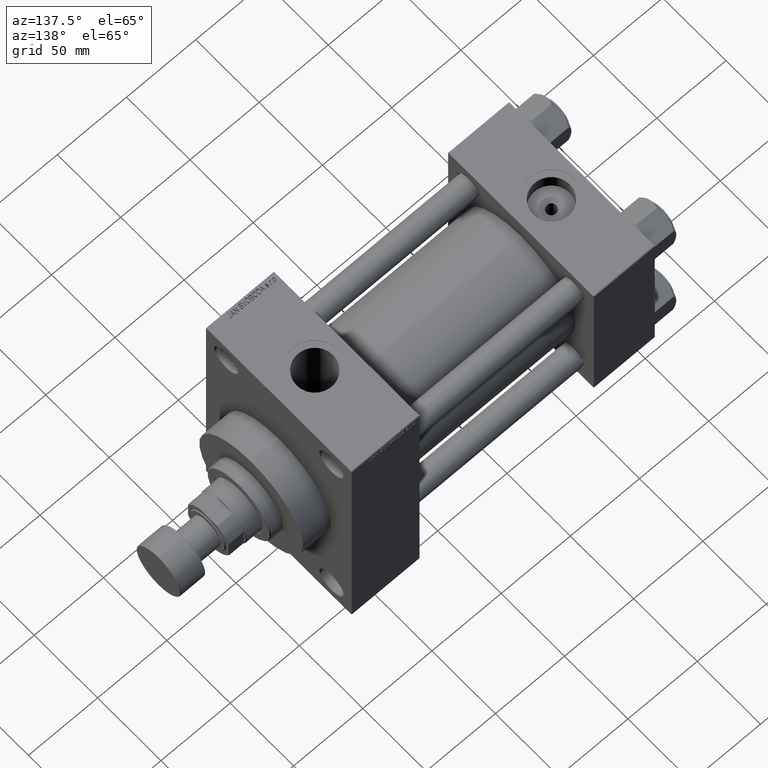
[diagram: clean part render]
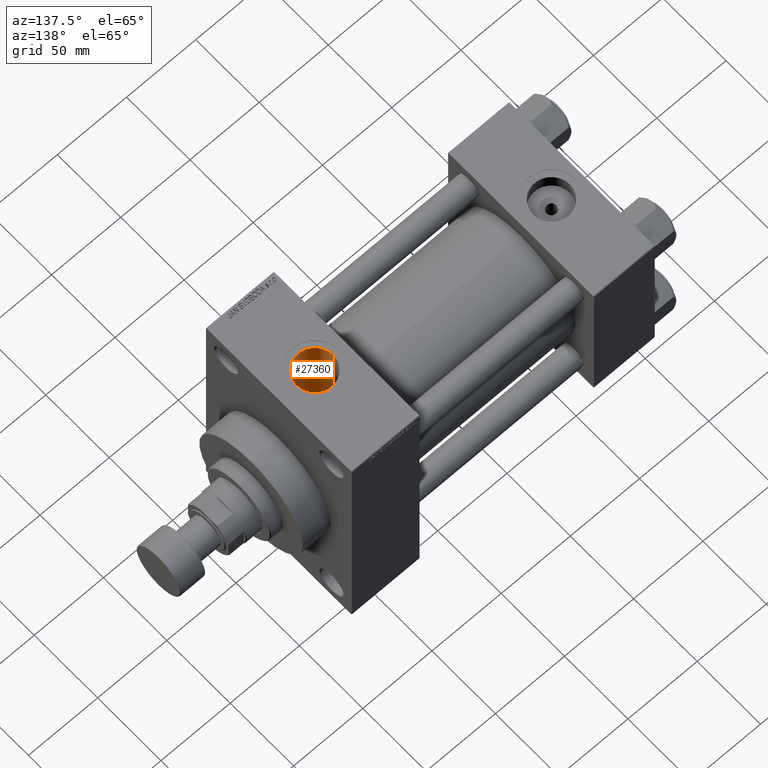
[diagram: same view with one face highlighted and labeled with its STEP entity id]
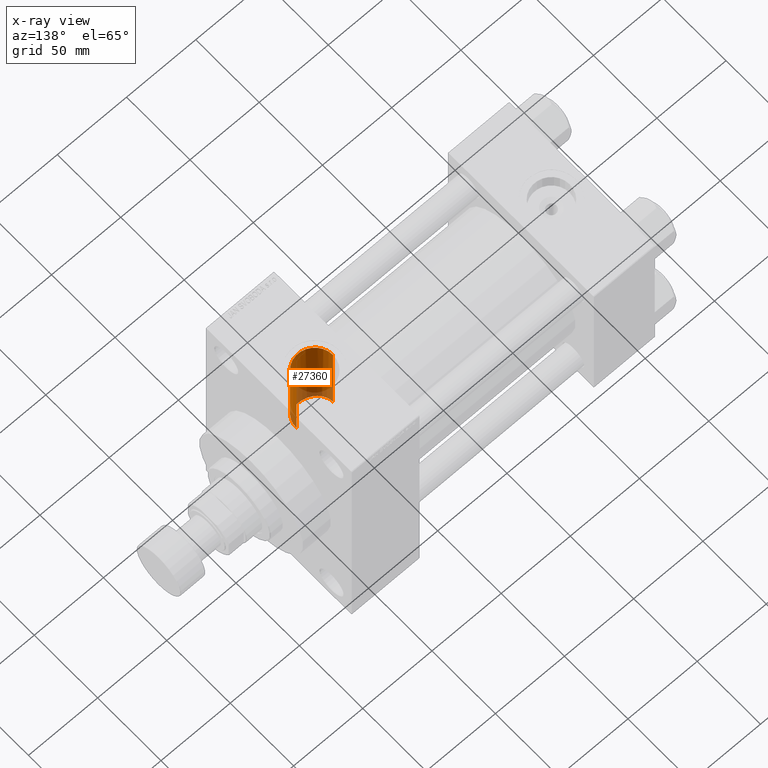
[diagram: x-ray of the same camera — body ghosted, the highlighted face saturated]
A machine part, auxiliary view. The second image highlights one B-rep face of the part: STEP entity #27360.
The next image is the same camera in x-ray: the body ghosted, the highlighted face saturated — about 17% of this face is hidden behind the body in this view.
In plain terms, the highlighted cylindrical surface (edge-blend (fillet) strip) has radius 13.22 mm, axis along (0, 0, -1).
Its self-contained STEP definition (entity closure, byte-faithful):
#1611 = CARTESIAN_POINT ( 'NONE',  ( 192.3058823230127530, -13.21107762266989205, 27.49031640659327635 ) ) ;
#1702 = CARTESIAN_POINT ( 'NONE',  ( 192.9999999999999432, 0.000000000000000000, 89.79999999999999716 ) ) ;
#2082 = CARTESIAN_POINT ( 'NONE',  ( 181.5247582497704002, -6.582345398711106910, 29.78430981770567954 ) ) ;
#2560 = CARTESIAN_POINT ( 'NONE',  ( 193.7935798839906170, -13.23338642126743103, 27.47958799132000607 ) ) ;
#4592 = CARTESIAN_POINT ( 'NONE',  ( 204.3340033522583212, -6.815280192024299133, 35.35054759480856035 ) ) ;
#4777 = LINE ( 'NONE', #16425, #20120 ) ;
#5734 = CARTESIAN_POINT ( 'NONE',  ( 190.8194127222318457, -13.04835861710614786, 27.56801161413728707 ) ) ;
#5937 = VERTEX_POINT ( 'NONE', #41547 ) ;
#6068 = DIRECTION ( 'NONE',  ( -0.000000000000000000, -0.000000000000000000, -1.000000000000000000 ) ) ;
#6215 = CARTESIAN_POINT ( 'NONE',  ( 186.2234386244903703, -11.39284893347530669, 28.29622104590159637 ) ) ;
#6621 = CARTESIAN_POINT ( 'NONE',  ( 192.9999999999999432, 0.000000000000000000, 112.7999999999999829 ) ) ;
#6821 = B_SPLINE_CURVE_WITH_KNOTS ( 'NONE', 3,
 ( #30377, #11886, #15548, #33526, #26722, #25980, #41568, #41322, #37416, #4592, #33275, #22098, #37667, #7994, #48152, #34261, #40829, #44739, #36927, #26959, #22836, #14807, #29631, #34016, #8235, #44490 ),
 .UNSPECIFIED., .F., .F.,
 ( 4, 2, 2, 2, 2, 2, 2, 2, 2, 2, 2, 2, 4 ),
 ( 0.01810032772820882249, 0.02036086973656277624, 0.02149114074073976005, 0.02262141174491674386, 0.02488195375327071496, 0.02601222475744771959, 0.02714249576162472422, 0.02940303776997867796, 0.03053330877415563055, 0.03166357977833257620, 0.03392412178668648137, 0.03505439279086343396, 0.03618466379504037961 ),
 .UNSPECIFIED. ) ;
#7664 = CIRCLE ( 'NONE', #40299, 13.22000000000000952 ) ;
#7926 = EDGE_CURVE ( 'NONE', #11636, #40504, #4777, .T. ) ;
#7994 = CARTESIAN_POINT ( 'NONE',  ( 202.7829955645537723, -8.922873027715073846, 34.88174282732675380 ) ) ;
#8235 = CARTESIAN_POINT ( 'NONE',  ( 196.1130436000878774, -12.85390086390295217, 33.62713791769439098 ) ) ;
#8349 = LINE ( 'NONE', #34365, #38058 ) ;
#10099 = CARTESIAN_POINT ( 'NONE',  ( 179.8075453442666287, -0.9859064391995535637, 30.48803002647009563 ) ) ;
#11137 = CARTESIAN_POINT ( 'NONE',  ( 179.7799999999999443, 0.000000000000000000, 89.79999999999999716 ) ) ;
#11389 = ORIENTED_EDGE ( 'NONE', *, *, #25288, .T. ) ;
#11636 = VERTEX_POINT ( 'NONE', #34922 ) ;
#11886 = CARTESIAN_POINT ( 'NONE',  ( 206.2200000000000273, -0.7632647160769622241, 36.00000000000001421 ) ) ;
#12137 = DIRECTION ( 'NONE',  ( 0.000000000000000000, 0.000000000000000000, -1.000000000000000000 ) ) ;
#12797 = CARTESIAN_POINT ( 'NONE',  ( 179.7799999999999727, -0.4934884814115262364, 30.49999999999999289 ) ) ;
#13029 = ORIENTED_EDGE ( 'NONE', *, *, #22970, .T. ) ;
#13035 = CARTESIAN_POINT ( 'NONE',  ( 181.2888049357340776, -6.152518877594246760, 29.87635194004259276 ) ) ;
#13274 = CARTESIAN_POINT ( 'NONE',  ( 189.3806226936400776, -12.72437874985378770, 27.71924882183591166 ) ) ;
#13511 = CARTESIAN_POINT ( 'NONE',  ( 187.9856869291994315, -12.24205054737453580, 27.93593895886879253 ) ) ;
#14807 = CARTESIAN_POINT ( 'NONE',  ( 197.5622627804116291, -12.41346128962091555, 33.79242230791057011 ) ) ;
#15548 = CARTESIAN_POINT ( 'NONE',  ( 206.1544019816762443, -1.515576091947736570, 35.97576316411754505 ) ) ;
#16425 = CARTESIAN_POINT ( 'NONE',  ( 195.7399999999999807, -12.93293470176047144, 112.7999999999999829 ) ) ;
#16839 = VERTEX_POINT ( 'NONE', #36299 ) ;
#17310 = B_SPLINE_CURVE_WITH_KNOTS ( 'NONE', 3,
 ( #28099, #34934, #2560, #1611, #35650, #5734, #20337, #13274, #24212, #13511, #42959, #6215, #35404, #20571, #35885, #31280, #43198, #2082, #13035, #43441, #46145, #21053, #39532, #17405, #46624, #10099, #12797, #27620 ),
 .UNSPECIFIED., .F., .F.,
 ( 4, 2, 2, 2, 2, 2, 2, 2, 2, 2, 2, 2, 2, 4 ),
 ( 0.01817501853417217983, 0.02113533814074456882, 0.02261549794403076505, 0.02409565774731695781, 0.02557581755060315404, 0.02705597735388935027, 0.03001629696046174273, 0.03297661656703413519, 0.03445677637032031060, 0.03593693617360647907, 0.03889725578017882990, 0.03963733568182191414, 0.04037741558346501225, 0.04185757538675118766 ),
 .UNSPECIFIED. ) ;
#17405 = CARTESIAN_POINT ( 'NONE',  ( 179.9249887712033456, -1.968324950537285289, 30.43741289426055019 ) ) ;
#17589 = AXIS2_PLACEMENT_3D ( 'NONE', #6621, #36544, #47032 ) ;
#18073 = CARTESIAN_POINT ( 'NONE',  ( 206.2199999999999704, 4.408731805096607676E-15, 36.00000000000000000 ) ) ;
#18557 = DIRECTION ( 'NONE',  ( 0.000000000000000000, 0.000000000000000000, -1.000000000000000000 ) ) ;
#19972 = ORIENTED_EDGE ( 'NONE', *, *, #33382, .F. ) ;
#20120 = VECTOR ( 'NONE', #33959, 1000.000000000000000 ) ;
#20142 = CARTESIAN_POINT ( 'NONE',  ( 206.2199999999999704, 1.618983068472802532E-15, 112.7999999999999829 ) ) ;
#20337 = CARTESIAN_POINT ( 'NONE',  ( 190.3349265898027340, -12.95789683450919405, 27.61085799903363025 ) ) ;
#20571 = CARTESIAN_POINT ( 'NONE',  ( 183.8972371638811865, -9.636377362439823457, 28.94508358760565869 ) ) ;
#21053 = CARTESIAN_POINT ( 'NONE',  ( 180.0571384771799615, -2.704130925345936021, 30.38086169036233031 ) ) ;
#22098 = CARTESIAN_POINT ( 'NONE',  ( 203.7144084780975390, -7.753104972441702714, 35.15664683191294415 ) ) ;
#22530 = VECTOR ( 'NONE', #12137, 1000.000000000000000 ) ;
#22836 = CARTESIAN_POINT ( 'NONE',  ( 198.6039743856110817, -11.99680468088061325, 33.94354112271071955 ) ) ;
#22970 = EDGE_CURVE ( 'NONE', #26605, #40504, #6821, .T. ) ;
#24212 = CARTESIAN_POINT ( 'NONE',  ( 188.9108056136110463, -12.58132053668448336, 27.78479549450236163 ) ) ;
#24870 = FACE_OUTER_BOUND ( 'NONE', #34299, .T. ) ;
#25288 = EDGE_CURVE ( 'NONE', #11636, #5937, #17310, .T. ) ;
#25980 = CARTESIAN_POINT ( 'NONE',  ( 205.6891278366015001, -3.727918262643099112, 35.80834393886973288 ) ) ;
#26605 = VERTEX_POINT ( 'NONE', #18073 ) ;
#26722 = CARTESIAN_POINT ( 'NONE',  ( 205.8814408249625671, -2.996635129533368413, 35.87694312671834496 ) ) ;
#26959 = CARTESIAN_POINT ( 'NONE',  ( 199.2689392453521293, -11.66300537238689650, 34.06086853725208385 ) ) ;
#27360 = ADVANCED_FACE ( 'NONE', ( #24870 ), #44342, .F. ) ;
#27620 = CARTESIAN_POINT ( 'NONE',  ( 179.7799999999999443, 3.735152335644797090E-15, 30.50000000000000000 ) ) ;
#27679 = ORIENTED_EDGE ( 'NONE', *, *, #43222, .T. ) ;
#28099 = CARTESIAN_POINT ( 'NONE',  ( 195.7399999999999807, -12.93293470176047322, 27.62225914004862304 ) ) ;
#29631 = CARTESIAN_POINT ( 'NONE',  ( 197.2076088460675294, -12.53825874082047598, 33.74619856893892944 ) ) ;
#30377 = CARTESIAN_POINT ( 'NONE',  ( 206.2199999999999704, 4.408731805096607676E-15, 36.00000000000000000 ) ) ;
#31280 = CARTESIAN_POINT ( 'NONE',  ( 182.3230183722454569, -7.810479071823819730, 29.48561069758632769 ) ) ;
#32025 = ORIENTED_EDGE ( 'NONE', *, *, #35520, .F. ) ;
#32332 = DIRECTION ( 'NONE',  ( 1.000000000000000000, 0.000000000000000000, 0.000000000000000000 ) ) ;
#33275 = CARTESIAN_POINT ( 'NONE',  ( 204.1369082302657887, -7.132913908064993258, 35.28770313236166345 ) ) ;
#33382 = EDGE_CURVE ( 'NONE', #16839, #36053, #7664, .T. ) ;
#33526 = CARTESIAN_POINT ( 'NONE',  ( 205.9615557504129413, -2.628343228240502150, 35.90584824798533958 ) ) ;
#33959 = DIRECTION ( 'NONE',  ( -0.000000000000000000, -0.000000000000000000, 1.000000000000000000 ) ) ;
#34016 = CARTESIAN_POINT ( 'NONE',  ( 196.4827252521804439, -12.75862568112614248, 33.66350131574143489 ) ) ;
#34261 = CARTESIAN_POINT ( 'NONE',  ( 201.4301524439942170, -10.19013505585468771, 34.52862519156882115 ) ) ;
#34272 = LINE ( 'NONE', #20142, #22530 ) ;
#34299 = EDGE_LOOP ( 'NONE', ( #19972, #27679, #13029, #47344, #11389, #32025 ) ) ;
#34365 = CARTESIAN_POINT ( 'NONE',  ( 179.7799999999999443, 0.000000000000000000, 112.7999999999999829 ) ) ;
#34922 = CARTESIAN_POINT ( 'NONE',  ( 195.7399999999999807, -12.93293470176047322, 27.62225914004862304 ) ) ;
#34934 = CARTESIAN_POINT ( 'NONE',  ( 194.7728848785530147, -13.13782983916527769, 27.52632580529386885 ) ) ;
#35404 = CARTESIAN_POINT ( 'NONE',  ( 185.4103075940778353, -10.86814745508434932, 28.50545567885846765 ) ) ;
#35520 = EDGE_CURVE ( 'NONE', #36053, #5937, #8349, .T. ) ;
#35650 = CARTESIAN_POINT ( 'NONE',  ( 191.8037034507515273, -13.17510903343228534, 27.50766127672410022 ) ) ;
#35885 = CARTESIAN_POINT ( 'NONE',  ( 183.2203172874389452, -8.947551960444574348, 29.16865783815233115 ) ) ;
#36053 = VERTEX_POINT ( 'NONE', #11137 ) ;
#36299 = CARTESIAN_POINT ( 'NONE',  ( 206.2199999999999704, 1.618983068472802926E-15, 89.79999999999999716 ) ) ;
#36544 = DIRECTION ( 'NONE',  ( 0.000000000000000000, 0.000000000000000000, -1.000000000000000000 ) ) ;
#36927 = CARTESIAN_POINT ( 'NONE',  ( 200.2234778375481312, -11.07831175427971537, 34.25365854375356633 ) ) ;
#37416 = CARTESIAN_POINT ( 'NONE',  ( 204.8836492013383008, -5.839896060611115658, 35.52932100949514904 ) ) ;
#37667 = CARTESIAN_POINT ( 'NONE',  ( 203.4891427515922260, -8.055144359843691149, 35.08850325643998502 ) ) ;
#38058 = VECTOR ( 'NONE', #18557, 1000.000000000000000 ) ;
#39532 = CARTESIAN_POINT ( 'NONE',  ( 180.0082494278150591, -2.458584717718187207, 30.40173955536770478 ) ) ;
#40299 = AXIS2_PLACEMENT_3D ( 'NONE', #1702, #6068, #32332 ) ;
#40504 = VERTEX_POINT ( 'NONE', #44962 ) ;
#40829 = CARTESIAN_POINT ( 'NONE',  ( 201.1396695021038852, -10.42376285600497887, 34.45866136291867576 ) ) ;
#41322 = CARTESIAN_POINT ( 'NONE',  ( 205.1948937127547765, -5.159834589306226071, 35.63551938799943741 ) ) ;
#41547 = CARTESIAN_POINT ( 'NONE',  ( 179.7799999999999443, 3.735152335644797090E-15, 30.50000000000000000 ) ) ;
#41568 = CARTESIAN_POINT ( 'NONE',  ( 205.5762609626179369, -4.092528755394246431, 35.76841822259746095 ) ) ;
#42959 = CARTESIAN_POINT ( 'NONE',  ( 187.5318111534776335, -12.04594987798921757, 28.02143598411491610 ) ) ;
#43198 = CARTESIAN_POINT ( 'NONE',  ( 182.0434615026329936, -7.413683856886494894, 29.58833678893007857 ) ) ;
#43222 = EDGE_CURVE ( 'NONE', #16839, #26605, #34272, .T. ) ;
#43441 = CARTESIAN_POINT ( 'NONE',  ( 180.6573864625835029, -4.834977203227587061, 30.12760479331262786 ) ) ;
#44342 = CYLINDRICAL_SURFACE ( 'NONE', #17589, 13.22000000000000952 ) ;
#44490 = CARTESIAN_POINT ( 'NONE',  ( 195.7399999999999807, -12.93293470176047144, 33.59671412504502541 ) ) ;
#44739 = CARTESIAN_POINT ( 'NONE',  ( 200.5356348427428088, -10.86845247487191735, 34.32099817610182413 ) ) ;
#44962 = CARTESIAN_POINT ( 'NONE',  ( 195.7399999999999807, -12.93293470176047144, 33.59671412504502541 ) ) ;
#46145 = CARTESIAN_POINT ( 'NONE',  ( 180.3336605936849821, -3.913778405700232721, 30.26347032903656853 ) ) ;
#46624 = CARTESIAN_POINT ( 'NONE',  ( 179.8904211679684693, -1.722922135315089864, 30.45229114395321801 ) ) ;
#47032 = DIRECTION ( 'NONE',  ( -1.000000000000000000, 0.000000000000000000, 0.000000000000000000 ) ) ;
#47344 = ORIENTED_EDGE ( 'NONE', *, *, #7926, .F. ) ;
#48152 = CARTESIAN_POINT ( 'NONE',  ( 202.2683236211793485, -9.456123306897655567, 34.73961675537525196 ) ) ;